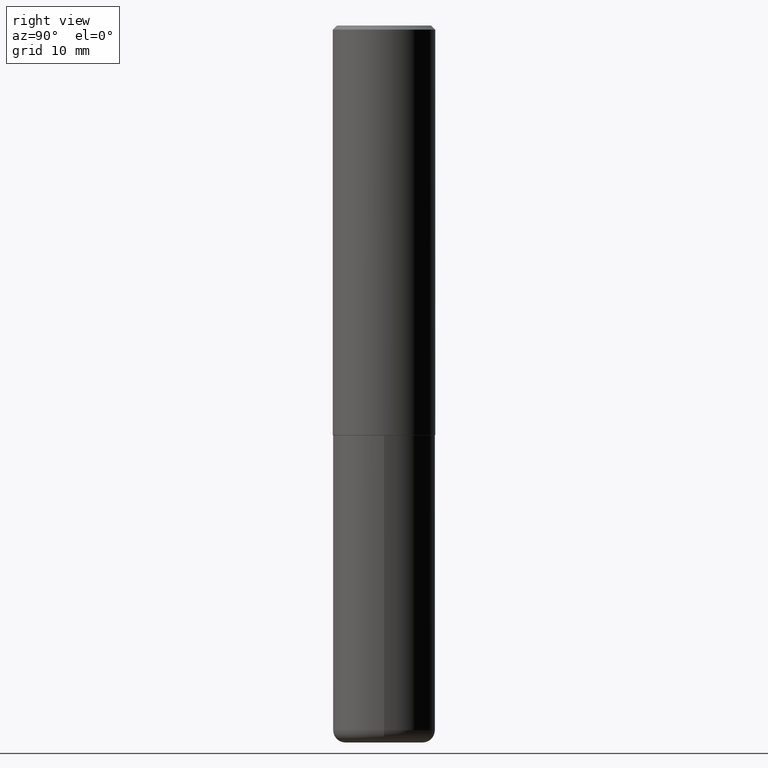
[diagram: clean part render]
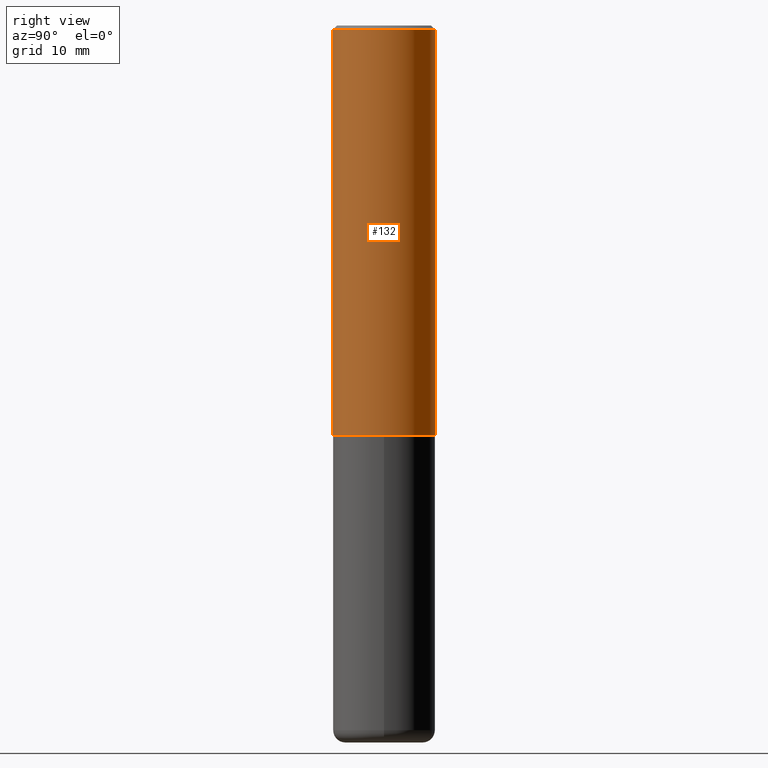
[diagram: same view with one face highlighted and labeled with its STEP entity id]
A machine part, right view. The second image highlights one B-rep face of the part: STEP entity #132.
In plain terms, the highlighted cylindrical surface (partial cylindrical patch) has radius 6.35 mm, axis along (-0, 0, 1).
Its self-contained STEP definition (entity closure, byte-faithful):
#11 = CARTESIAN_POINT ( 'NONE',  ( 4.888157982744373443E-31, -6.986943265517335816E-17, -0.02000000000000009062 ) ) ;
#13 = CIRCLE ( 'NONE', #248, 0.2500000000000002776 ) ;
#14 = VERTEX_POINT ( 'NONE', #40 ) ;
#20 = CARTESIAN_POINT ( 'NONE',  ( 4.885713903752978284E-29, -6.983449793884546288E-15, -1.998999999999999888 ) ) ;
#40 = CARTESIAN_POINT ( 'NONE',  ( 1.776356839400276103E-15, 0.2499999999999932832, -1.999000000000000776 ) ) ;
#48 = ORIENTED_EDGE ( 'NONE', *, *, #412, .T. ) ;
#58 = DIRECTION ( 'NONE',  ( -2.444078991372175563E-29, 3.493471632758652550E-15, 1.000000000000000000 ) ) ;
#60 = DIRECTION ( 'NONE',  ( -6.982962677686265922E-15, -1.000000000000000000, 3.278217592397112312E-15 ) ) ;
#91 = DIRECTION ( 'NONE',  ( -2.444078991372175563E-29, 3.493471632758652550E-15, 1.000000000000000000 ) ) ;
#118 = DIRECTION ( 'NONE',  ( -2.444078991372175563E-29, 3.493471632758652550E-15, 1.000000000000000000 ) ) ;
#120 = EDGE_CURVE ( 'NONE', #251, #345, #254, .T. ) ;
#122 = DIRECTION ( 'NONE',  ( -6.982962677686266711E-15, -1.000000000000000000, 3.493471632758652550E-15 ) ) ;
#132 = ADVANCED_FACE ( 'NONE', ( #229 ), #347, .T. ) ;
#156 = DIRECTION ( 'NONE',  ( -2.444078991372175563E-29, 3.493471632758652550E-15, 1.000000000000000000 ) ) ;
#160 = CARTESIAN_POINT ( 'NONE',  ( -1.745740669421567467E-15, -0.2500000000000001110, 8.733679081896635319E-16 ) ) ;
#181 = VECTOR ( 'NONE', #268, 39.37007874015748143 ) ;
#186 = CARTESIAN_POINT ( 'NONE',  ( 1.745740669421567269E-15, 0.2499999999999999722, -0.02000000000000096492 ) ) ;
#189 = VECTOR ( 'NONE', #91, 39.37007874015748143 ) ;
#198 = ORIENTED_EDGE ( 'NONE', *, *, #120, .F. ) ;
#204 = VERTEX_POINT ( 'NONE', #312 ) ;
#216 = LINE ( 'NONE', #160, #181 ) ;
#229 = FACE_OUTER_BOUND ( 'NONE', #389, .T. ) ;
#235 = EDGE_CURVE ( 'NONE', #204, #251, #216, .T. ) ;
#248 = AXIS2_PLACEMENT_3D ( 'NONE', #20, #118, #60 ) ;
#251 = VERTEX_POINT ( 'NONE', #295 ) ;
#254 = CIRCLE ( 'NONE', #370, 0.2500000000000000555 ) ;
#265 = AXIS2_PLACEMENT_3D ( 'NONE', #378, #58, #122 ) ;
#268 = DIRECTION ( 'NONE',  ( -2.444078991372175563E-29, 3.493471632758652550E-15, 1.000000000000000000 ) ) ;
#279 = ORIENTED_EDGE ( 'NONE', *, *, #235, .F. ) ;
#280 = DIRECTION ( 'NONE',  ( -6.982962677686265133E-15, -1.000000000000000000, 3.500180241882336472E-15 ) ) ;
#295 = CARTESIAN_POINT ( 'NONE',  ( -1.715124499442882496E-15, -0.2500000000000001110, -0.01999999999999921632 ) ) ;
#307 = LINE ( 'NONE', #377, #189 ) ;
#312 = CARTESIAN_POINT ( 'NONE',  ( -1.745740669421519543E-15, -0.2500000000000072720, -1.998999999999999000 ) ) ;
#345 = VERTEX_POINT ( 'NONE', #186 ) ;
#347 = CYLINDRICAL_SURFACE ( 'NONE', #265, 0.2500000000000001110 ) ;
#363 = ORIENTED_EDGE ( 'NONE', *, *, #383, .T. ) ;
#370 = AXIS2_PLACEMENT_3D ( 'NONE', #11, #156, #280 ) ;
#377 = CARTESIAN_POINT ( 'NONE',  ( 1.776356839400251254E-15, 0.2500000000000001110, -8.733679081896635319E-16 ) ) ;
#378 = CARTESIAN_POINT ( 'NONE',  ( 0.000000000000000000, 0.000000000000000000, 0.000000000000000000 ) ) ;
#383 = EDGE_CURVE ( 'NONE', #204, #14, #13, .T. ) ;
#389 = EDGE_LOOP ( 'NONE', ( #363, #48, #198, #279 ) ) ;
#412 = EDGE_CURVE ( 'NONE', #14, #345, #307, .T. ) ;